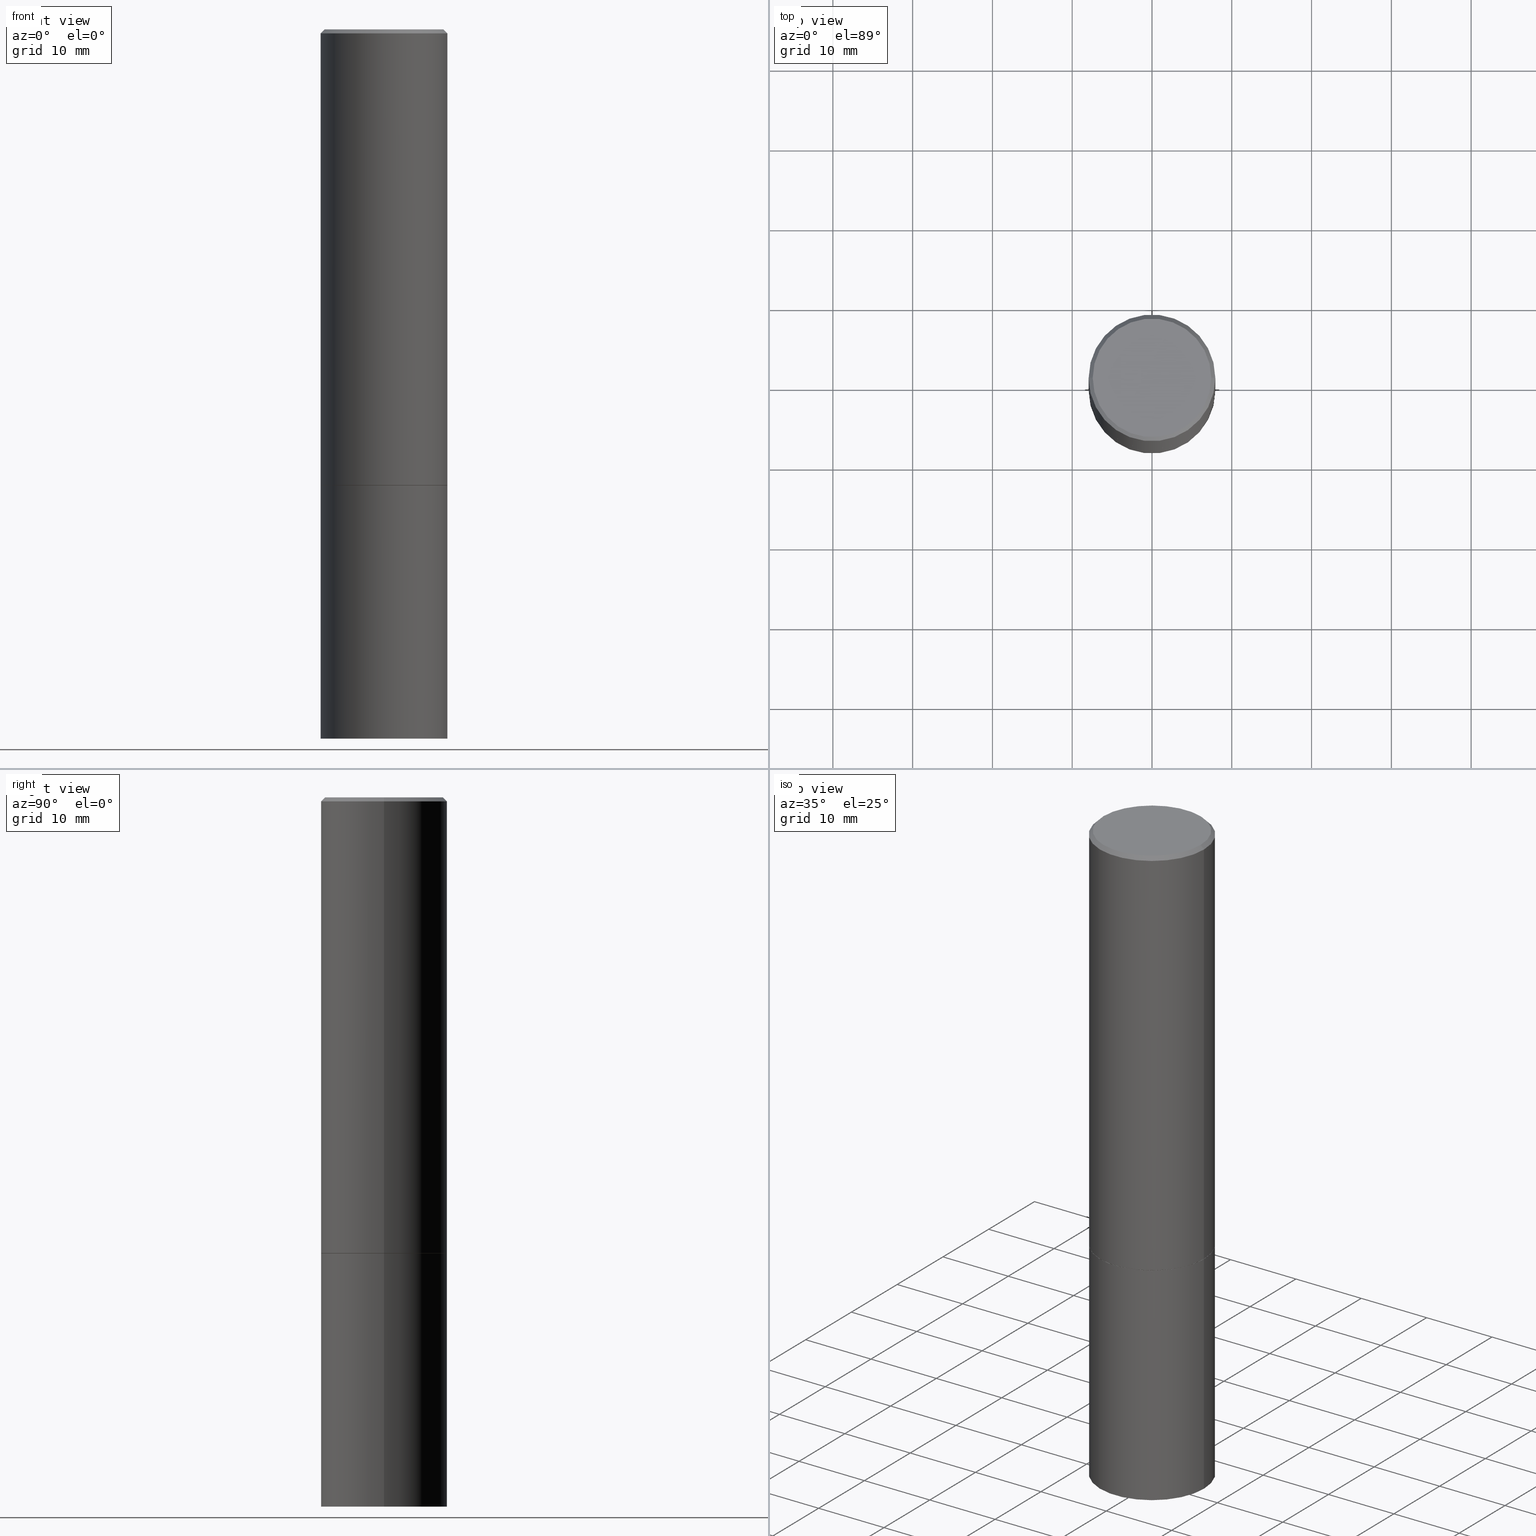
[diagram: canonical four-view strip — front | top / right | iso, engineering-drawing reading convention]
A machine part, canonical four-view strip (front | top / right | iso — engineering-drawing reading convention). The complete STEP part file that produces these views, byte-faithful:
ISO-10303-21;
HEADER;
FILE_DESCRIPTION (( 'STEP AP203' ),
    '1' );
FILE_NAME ('30181.STEP',
    '2023-03-21T20:24:53',
    ( '' ),
    ( '' ),
    'SwSTEP 2.0',
    'SolidWorks 2022',
    '' );
FILE_SCHEMA (( 'CONFIG_CONTROL_DESIGN' ));
ENDSEC;

DATA;
#1 = CONICAL_SURFACE ( 'NONE', #257, 751.2258538476739886, 1.518436449235074148 ) ;
#2 = CARTESIAN_POINT ( 'NONE',  ( 5.502304813916556222E-29, -7.855833012397075293E-15, -2.249999999999999556 ) ) ;
#3 = APPROVAL_ROLE ( '' ) ;
#4 = LINE ( 'NONE', #166, #90 ) ;
#5 = LINE ( 'NONE', #144, #272 ) ;
#6 = PERSON_AND_ORGANIZATION ( #386, #380 ) ;
#7 = EDGE_LOOP ( 'NONE', ( #354, #199 ) ) ;
#8 = DIRECTION ( 'NONE',  ( -1.000000000000000000, 6.982962677686266711E-15, 0.000000000000000000 ) ) ;
#9 = EDGE_CURVE ( 'NONE', #65, #268, #13, .T. ) ;
#10 = APPROVAL ( #226, 'UNSPECIFIED' ) ;
#11 = FACE_OUTER_BOUND ( 'NONE', #193, .T. ) ;
#12 = DIRECTION ( 'NONE',  ( 1.000000000000000000, -6.982962677686265133E-15, 0.000000000000000000 ) ) ;
#13 = CIRCLE ( 'NONE', #103, 0.2924999999999997602 ) ;
#14 = CARTESIAN_POINT ( 'NONE',  ( 5.499859345110370619E-29, -7.852341531058232286E-15, -2.248999999999999222 ) ) ;
#15 = DIRECTION ( 'NONE',  ( -2.445468806185136597E-29, 3.491481338843145583E-15, 1.000000000000000000 ) ) ;
#16 = LINE ( 'NONE', #81, #245 ) ;
#17 = CARTESIAN_POINT ( 'NONE',  ( -1.043851414335219820E-46, 1.490343170380447200E-32, 4.268512490100411279E-18 ) ) ;
#18 = APPROVAL_DATE_TIME ( #375, #136 ) ;
#19 = ORIENTED_EDGE ( 'NONE', *, *, #89, .T. ) ;
#20 = DIRECTION ( 'NONE',  ( 1.000000000000000000, -6.982962677686265133E-15, 0.000000000000000000 ) ) ;
#21 = CALENDAR_DATE ( 2023, 21, 3 ) ;
#22 = CIRCLE ( 'NONE', #328, 0.3125000000000000000 ) ;
#23 = DIRECTION ( 'NONE',  ( -2.445468806185136877E-29, 3.491481338843145188E-15, 1.000000000000000000 ) ) ;
#24 = DIRECTION ( 'NONE',  ( -2.445468806185136597E-29, 3.491481338843145583E-15, 1.000000000000000000 ) ) ;
#25 = VERTEX_POINT ( 'NONE', #389 ) ;
#26 = EDGE_LOOP ( 'NONE', ( #118, #239, #83, #180 ) ) ;
#27 = EDGE_CURVE ( 'NONE', #261, #233, #256, .T. ) ;
#28 =( CONVERSION_BASED_UNIT ( 'INCH', #123 ) LENGTH_UNIT ( ) NAMED_UNIT ( #277 ) );
#29 = FACE_OUTER_BOUND ( 'NONE', #168, .T. ) ;
#30 = COORDINATED_UNIVERSAL_TIME_OFFSET ( 5, 0, .BEHIND. ) ;
#31 = DIRECTION ( 'NONE',  ( -2.438088387897960049E-29, 3.491481338843145188E-15, 1.000000000000000000 ) ) ;
#32 = EDGE_CURVE ( 'NONE', #298, #288, #183, .T. ) ;
#33 = CYLINDRICAL_SURFACE ( 'NONE', #289, 0.3125000000000000000 ) ;
#34 = ORIENTED_EDGE ( 'NONE', *, *, #37, .F. ) ;
#35 = CARTESIAN_POINT ( 'NONE',  ( -0.3125000000000000000, -7.817562799923728448E-15, -2.249999999999999556 ) ) ;
#36 = DATE_AND_TIME ( #61, #96 ) ;
#37 = EDGE_CURVE ( 'NONE', #209, #114, #5, .T. ) ;
#38 = AXIS2_PLACEMENT_3D ( 'NONE', #346, #347, #106 ) ;
#39 = PERSON_AND_ORGANIZATION_ROLE ( 'classification_officer' ) ;
#40 = AXIS2_PLACEMENT_3D ( 'NONE', #246, #353, #85 ) ;
#41 = DIRECTION ( 'NONE',  ( 1.000000000000000000, -6.982962677686265133E-15, 0.000000000000000000 ) ) ;
#42 = AXIS2_PLACEMENT_3D ( 'NONE', #62, #217, #258 ) ;
#43 = CYLINDRICAL_SURFACE ( 'NONE', #145, 0.3124999999999998890 ) ;
#44 = DIRECTION ( 'NONE',  ( -1.000000000000000000, 6.982962677686265922E-15, -4.876176775795935793E-29 ) ) ;
#45 = EDGE_CURVE ( 'NONE', #261, #319, #367, .T. ) ;
#46 = APPLICATION_PROTOCOL_DEFINITION ( 'international standard', 'config_control_design', 1994, #294 ) ;
#47 = EDGE_LOOP ( 'NONE', ( #307, #281, #382 ) ) ;
#48 = ADVANCED_FACE ( 'NONE', ( #341 ), #1, .F. ) ;
#49 = PRODUCT_RELATED_PRODUCT_CATEGORY ( 'detail', '', ( #76 ) ) ;
#50 = CIRCLE ( 'NONE', #208, 0.3125000000000000000 ) ;
#51 = DESIGN_CONTEXT ( 'detailed design', #232, 'design' ) ;
#52 = APPROVAL_PERSON_ORGANIZATION ( #165, #203, #339 ) ;
#53 =( NAMED_UNIT ( * ) PLANE_ANGLE_UNIT ( ) SI_UNIT ( $, .RADIAN. ) );
#54 = APPROVAL_DATE_TIME ( #36, #10 ) ;
#55 = LINE ( 'NONE', #219, #384 ) ;
#56 = ADVANCED_FACE ( 'NONE', ( #68 ), #371, .F. ) ;
#57 = DIRECTION ( 'NONE',  ( 1.000000000000000000, -6.982962677686269077E-15, 0.000000000000000000 ) ) ;
#58 = CIRCLE ( 'NONE', #67, 0.3125000000000000000 ) ;
#59 = ORIENTED_EDGE ( 'NONE', *, *, #9, .T. ) ;
#60 = DATE_AND_TIME ( #130, #113 ) ;
#61 = CALENDAR_DATE ( 2023, 21, 3 ) ;
#62 = CARTESIAN_POINT ( 'NONE',  ( 4.890937612370289799E-31, -6.982962677686315028E-17, -0.02000000000000006981 ) ) ;
#63 = ORIENTED_EDGE ( 'NONE', *, *, #27, .T. ) ;
#64 = APPROVAL_DATE_TIME ( #60, #203 ) ;
#65 = VERTEX_POINT ( 'NONE', #176 ) ;
#66 = CIRCLE ( 'NONE', #38, 0.3125000000000000000 ) ;
#67 = AXIS2_PLACEMENT_3D ( 'NONE', #100, #102, #314 ) ;
#68 = FACE_OUTER_BOUND ( 'NONE', #271, .T. ) ;
#69 = CARTESIAN_POINT ( 'NONE',  ( 5.502304813916556222E-29, -7.855833012397075293E-15, -2.249999999999999556 ) ) ;
#70 = ORIENTED_EDGE ( 'NONE', *, *, #383, .F. ) ;
#71 = DIRECTION ( 'NONE',  ( -1.000000000000000000, 6.982962677686266711E-15, 0.000000000000000000 ) ) ;
#72 = CONICAL_SURFACE ( 'NONE', #178, 0.3114999999999999991, 0.7853981633974141952 ) ;
#73 = APPROVAL_ROLE ( '' ) ;
#74 = PRODUCT_DEFINITION_FORMATION_WITH_SPECIFIED_SOURCE ( 'ANY', '', #76, .NOT_KNOWN. ) ;
#75 = DIRECTION ( 'NONE',  ( -2.445468806185136877E-29, 3.491481338843145188E-15, 1.000000000000000000 ) ) ;
#76 = PRODUCT ( '30181', '30181', '', ( #98 ) ) ;
#77 = CARTESIAN_POINT ( 'NONE',  ( 0.3124999999999998890, -2.182175836776957558E-15, 1.523805242436229235E-29 ) ) ;
#78 = ADVANCED_FACE ( 'NONE', ( #115 ), #202, .T. ) ;
#79 = VERTEX_POINT ( 'NONE', #211 ) ;
#80 = PRODUCT_DEFINITION ( 'UNKNOWN', '', #74, #51 ) ;
#81 = CARTESIAN_POINT ( 'NONE',  ( 0.3125000000000000000, -2.182175836776958347E-15, 1.523805242436230075E-29 ) ) ;
#82 = DIRECTION ( 'NONE',  ( 0.7071067811865466846, -7.319954787623252890E-15, -0.7071067811865483499 ) ) ;
#83 = ORIENTED_EDGE ( 'NONE', *, *, #302, .T. ) ;
#84 = VECTOR ( 'NONE', #135, 39.37007874015748143 ) ;
#85 = DIRECTION ( 'NONE',  ( 1.000000000000000000, 0.000000000000000000, 0.000000000000000000 ) ) ;
#86 = ADVANCED_FACE ( 'NONE', ( #318 ), #299, .F. ) ;
#87 = CARTESIAN_POINT ( 'NONE',  ( -0.3124999999999997224, -1.003800884917405415E-14, -3.500000000000000000 ) ) ;
#88 = ORIENTED_EDGE ( 'NONE', *, *, #37, .T. ) ;
#89 = EDGE_CURVE ( 'NONE', #209, #319, #50, .T. ) ;
#90 = VECTOR ( 'NONE', #131, 39.37007874015748143 ) ;
#91 = ORIENTED_EDGE ( 'NONE', *, *, #128, .F. ) ;
#92 = DATE_AND_TIME ( #312, #313 ) ;
#93 = PERSON_AND_ORGANIZATION_ROLE ( 'design_owner' ) ;
#94 = CARTESIAN_POINT ( 'NONE',  ( 5.502304813916556222E-29, -7.855833012397075293E-15, -2.249999999999999556 ) ) ;
#95 = DIRECTION ( 'NONE',  ( -2.445468806185136597E-29, 3.491481338843145583E-15, 1.000000000000000000 ) ) ;
#96 = LOCAL_TIME ( 16, 24, 53.00000000000000000, #30 ) ;
#97 = CYLINDRICAL_SURFACE ( 'NONE', #250, 0.3124999999999998890 ) ;
#98 = MECHANICAL_CONTEXT ( 'NONE', #294, 'mechanical' ) ;
#99 = CC_DESIGN_PERSON_AND_ORGANIZATION_ASSIGNMENT ( #198, #127, ( #74 ) ) ;
#100 = CARTESIAN_POINT ( 'NONE',  ( 5.499859345110370619E-29, -7.852341531058232286E-15, -2.248999999999999222 ) ) ;
#101 = FACE_OUTER_BOUND ( 'NONE', #26, .T. ) ;
#102 = DIRECTION ( 'NONE',  ( -2.445468806185136597E-29, 3.491481338843145583E-15, 1.000000000000000000 ) ) ;
#103 = AXIS2_PLACEMENT_3D ( 'NONE', #133, #204, #254 ) ;
#104 = ORIENTED_EDGE ( 'NONE', *, *, #132, .F. ) ;
#105 = ADVANCED_FACE ( 'NONE', ( #273 ), #43, .T. ) ;
#106 = DIRECTION ( 'NONE',  ( 1.000000000000000000, -6.982962677686269077E-15, 0.000000000000000000 ) ) ;
#107 = DIRECTION ( 'NONE',  ( 2.445468806185136597E-29, -3.491481338843145583E-15, -1.000000000000000000 ) ) ;
#108 = CARTESIAN_POINT ( 'NONE',  ( 5.502304813916556222E-29, -7.855833012397075293E-15, -2.249999999999999556 ) ) ;
#109 = ORIENTED_EDGE ( 'NONE', *, *, #45, .T. ) ;
#110 = DIRECTION ( 'NONE',  ( -2.445468806185136597E-29, 3.491481338843145583E-15, 1.000000000000000000 ) ) ;
#111 = EDGE_CURVE ( 'NONE', #79, #288, #16, .T. ) ;
#112 = VECTOR ( 'NONE', #374, 39.37007874015748143 ) ;
#113 = LOCAL_TIME ( 16, 24, 53.00000000000000000, #171 ) ;
#114 = VERTEX_POINT ( 'NONE', #267 ) ;
#115 = FACE_OUTER_BOUND ( 'NONE', #381, .T. ) ;
#116 = CC_DESIGN_PERSON_AND_ORGANIZATION_ASSIGNMENT ( #360, #279, ( #80 ) ) ;
#117 = EDGE_CURVE ( 'NONE', #114, #378, #285, .T. ) ;
#118 = ORIENTED_EDGE ( 'NONE', *, *, #385, .F. ) ;
#119 = CYLINDRICAL_SURFACE ( 'NONE', #187, 0.3125000000000000000 ) ;
#120 = LINE ( 'NONE', #182, #122 ) ;
#121 = AXIS2_PLACEMENT_3D ( 'NONE', #293, #107, #343 ) ;
#122 = VECTOR ( 'NONE', #82, 39.37007874015748143 ) ;
#123 = LENGTH_MEASURE_WITH_UNIT ( LENGTH_MEASURE( 0.02539999999999999897 ), #301 );
#124 = ORIENTED_EDGE ( 'NONE', *, *, #331, .F. ) ;
#125 = ORIENTED_EDGE ( 'NONE', *, *, #163, .T. ) ;
#126 = AXIS2_PLACEMENT_3D ( 'NONE', #243, #240, #154 ) ;
#127 = PERSON_AND_ORGANIZATION_ROLE ( 'design_supplier' ) ;
#128 = EDGE_CURVE ( 'NONE', #25, #79, #149, .T. ) ;
#129 = PLANE ( 'NONE',  #213 ) ;
#130 = CALENDAR_DATE ( 2023, 21, 3 ) ;
#131 = DIRECTION ( 'NONE',  ( -2.445468806185136877E-29, 3.491481338843145188E-15, 1.000000000000000000 ) ) ;
#132 = EDGE_CURVE ( 'NONE', #378, #114, #325, .T. ) ;
#133 = CARTESIAN_POINT ( 'NONE',  ( -1.043851414335219820E-46, 1.490343170380447200E-32, 4.268512490100411279E-18 ) ) ;
#134 = DIRECTION ( 'NONE',  ( -2.445468806185136597E-29, 3.491481338843145583E-15, 1.000000000000000000 ) ) ;
#135 = DIRECTION ( 'NONE',  ( -0.7071067811865466846, 2.468850131082247989E-15, -0.7071067811865483499 ) ) ;
#136 = APPROVAL ( #292, 'UNSPECIFIED' ) ;
#137 = ORIENTED_EDGE ( 'NONE', *, *, #247, .T. ) ;
#138 = ORIENTED_EDGE ( 'NONE', *, *, #9, .F. ) ;
#139 = FACE_OUTER_BOUND ( 'NONE', #387, .T. ) ;
#140 = SECURITY_CLASSIFICATION_LEVEL ( 'unclassified' ) ;
#141 = PLANE ( 'NONE',  #369 ) ;
#142 = DIRECTION ( 'NONE',  ( -2.445468806185136877E-29, 3.491481338843145188E-15, 1.000000000000000000 ) ) ;
#143 = ORIENTED_EDGE ( 'NONE', *, *, #212, .T. ) ;
#144 = CARTESIAN_POINT ( 'NONE',  ( -0.3124999999999998890, 2.220446049250312292E-15, -1.537167215704657391E-29 ) ) ;
#145 = AXIS2_PLACEMENT_3D ( 'NONE', #175, #24, #291 ) ;
#146 = SHAPE_DEFINITION_REPRESENTATION ( #326, #196 ) ;
#147 = ORIENTED_EDGE ( 'NONE', *, *, #385, .T. ) ;
#148 = ORIENTED_EDGE ( 'NONE', *, *, #308, .T. ) ;
#149 = LINE ( 'NONE', #264, #112 ) ;
#150 = CONICAL_SURFACE ( 'NONE', #249, 0.3114999999999999991, 0.7853981633974141952 ) ;
#151 = LOCAL_TIME ( 16, 24, 53.00000000000000000, #174 ) ;
#152 = DIRECTION ( 'NONE',  ( -0.7071067811865232589, 7.493145998870265808E-15, 0.7071067811865715536 ) ) ;
#153 = CARTESIAN_POINT ( 'NONE',  ( 4.890937612370289799E-31, -6.982962677686315028E-17, -0.02000000000000006981 ) ) ;
#154 = DIRECTION ( 'NONE',  ( 1.000000000000000000, -6.982962677686265133E-15, 0.000000000000000000 ) ) ;
#155 = CC_DESIGN_APPROVAL ( #10, ( #80 ) ) ;
#156 = ORIENTED_EDGE ( 'NONE', *, *, #117, .F. ) ;
#157 = EDGE_CURVE ( 'NONE', #79, #320, #22, .T. ) ;
#158 = CC_DESIGN_DATE_AND_TIME_ASSIGNMENT ( #255, #335, ( #80 ) ) ;
#159 = VECTOR ( 'NONE', #75, 39.37007874015748143 ) ;
#160 = FACE_OUTER_BOUND ( 'NONE', #242, .T. ) ;
#161 = CARTESIAN_POINT ( 'NONE',  ( 0.000000000000000000, 0.000000000000000000, 0.000000000000000000 ) ) ;
#162 = ORIENTED_EDGE ( 'NONE', *, *, #308, .F. ) ;
#163 = EDGE_CURVE ( 'NONE', #320, #79, #66, .T. ) ;
#164 = LINE ( 'NONE', #284, #84 ) ;
#165 = PERSON_AND_ORGANIZATION ( #386, #380 ) ;
#166 = CARTESIAN_POINT ( 'NONE',  ( -0.3125000000000000000, 2.220446049250313081E-15, -1.537167215704658232E-29 ) ) ;
#167 = AXIS2_PLACEMENT_3D ( 'NONE', #337, #195, #44 ) ;
#168 = EDGE_LOOP ( 'NONE', ( #370, #125, #235, #304 ) ) ;
#169 = SECURITY_CLASSIFICATION ( '', '', #140 ) ;
#170 = DIRECTION ( 'NONE',  ( -2.445468806185136597E-29, 3.491481338843145583E-15, 1.000000000000000000 ) ) ;
#171 = COORDINATED_UNIVERSAL_TIME_OFFSET ( 5, 0, .BEHIND. ) ;
#172 = DIRECTION ( 'NONE',  ( -0.9986295347545742773, 6.790662755453668466E-15, -0.05233595624293643084 ) ) ;
#173 = CARTESIAN_POINT ( 'NONE',  ( 5.502304813916556222E-29, -7.855833012397075293E-15, -2.249999999999999556 ) ) ;
#174 = COORDINATED_UNIVERSAL_TIME_OFFSET ( 5, 0, .BEHIND. ) ;
#175 = CARTESIAN_POINT ( 'NONE',  ( 0.000000000000000000, 0.000000000000000000, 0.000000000000000000 ) ) ;
#176 = CARTESIAN_POINT ( 'NONE',  ( 0.2924999999999997602, -2.110215457714318353E-15, 4.268512490114932791E-18 ) ) ;
#177 = CARTESIAN_POINT ( 'NONE',  ( 1.047973897810563057E-27, -1.496228984211908293E-13, -42.85370130913153019 ) ) ;
#178 = AXIS2_PLACEMENT_3D ( 'NONE', #2, #170, #338 ) ;
#179 = ORIENTED_EDGE ( 'NONE', *, *, #27, .F. ) ;
#180 = ORIENTED_EDGE ( 'NONE', *, *, #117, .T. ) ;
#181 = DIRECTION ( 'NONE',  ( -2.445468806185136597E-29, 3.491481338843145583E-15, 1.000000000000000000 ) ) ;
#182 = CARTESIAN_POINT ( 'NONE',  ( 0.3124999999999998335, -2.213735251080465334E-15, -0.02000000000000006981 ) ) ;
#183 = CIRCLE ( 'NONE', #344, 0.3125000000000000000 ) ;
#184 = CC_DESIGN_SECURITY_CLASSIFICATION ( #169, ( #74 ) ) ;
#185 = CIRCLE ( 'NONE', #290, 0.3114999999999999991 ) ;
#186 = ORIENTED_EDGE ( 'NONE', *, *, #372, .F. ) ;
#187 = AXIS2_PLACEMENT_3D ( 'NONE', #244, #181, #352 ) ;
#188 = FACE_OUTER_BOUND ( 'NONE', #215, .T. ) ;
#189 = AXIS2_PLACEMENT_3D ( 'NONE', #259, #363, #366 ) ;
#190 = CARTESIAN_POINT ( 'NONE',  ( -0.3114999999999999991, -5.637193936156140818E-15, -2.249999999999999556 ) ) ;
#191 = ORIENTED_EDGE ( 'NONE', *, *, #89, .F. ) ;
#192 = PERSON_AND_ORGANIZATION_ROLE ( 'creator' ) ;
#193 = EDGE_LOOP ( 'NONE', ( #63, #148, #186, #373 ) ) ;
#194 = DIRECTION ( 'NONE',  ( 1.000000000000000000, -6.982962677686266711E-15, 4.876176775795936353E-29 ) ) ;
#195 = DIRECTION ( 'NONE',  ( 2.438088387897960049E-29, -3.491481338843145188E-15, -1.000000000000000000 ) ) ;
#196 = ADVANCED_BREP_SHAPE_REPRESENTATION ( '30181', ( #266, #379, #40 ), #300 ) ;
#197 = CARTESIAN_POINT ( 'NONE',  ( 0.000000000000000000, 0.000000000000000000, 0.000000000000000000 ) ) ;
#198 = PERSON_AND_ORGANIZATION ( #386, #380 ) ;
#199 = ORIENTED_EDGE ( 'NONE', *, *, #32, .T. ) ;
#200 = ORIENTED_EDGE ( 'NONE', *, *, #157, .F. ) ;
#201 = COORDINATED_UNIVERSAL_TIME_OFFSET ( 5, 0, .BEHIND. ) ;
#202 = CONICAL_SURFACE ( 'NONE', #121, 0.3124999999999998335, 0.7853981633974471688 ) ;
#203 = APPROVAL ( #388, 'UNSPECIFIED' ) ;
#204 = DIRECTION ( 'NONE',  ( -2.445468806185136597E-29, 3.491481338843145583E-15, 1.000000000000000000 ) ) ;
#205 = EDGE_CURVE ( 'NONE', #319, #378, #234, .T. ) ;
#206 = EDGE_LOOP ( 'NONE', ( #91, #137, #200 ) ) ;
#207 = DIRECTION ( 'NONE',  ( -2.445468806185136597E-29, 3.491481338843145583E-15, 1.000000000000000000 ) ) ;
#208 = AXIS2_PLACEMENT_3D ( 'NONE', #14, #207, #349 ) ;
#209 = VERTEX_POINT ( 'NONE', #210 ) ;
#210 = CARTESIAN_POINT ( 'NONE',  ( -0.3125000000000000000, -1.740639529667232739E-15, -2.248999999999999222 ) ) ;
#211 = CARTESIAN_POINT ( 'NONE',  ( 0.3124999999999997224, -1.436409031025461138E-14, -3.500000000000000000 ) ) ;
#212 = EDGE_CURVE ( 'NONE', #320, #298, #4, .T. ) ;
#213 = AXIS2_PLACEMENT_3D ( 'NONE', #253, #361, #283 ) ;
#214 = ORIENTED_EDGE ( 'NONE', *, *, #132, .T. ) ;
#215 = EDGE_LOOP ( 'NONE', ( #179, #70 ) ) ;
#216 = CARTESIAN_POINT ( 'NONE',  ( -0.3114999999999999991, -5.642492390504363220E-15, -2.249999999999999556 ) ) ;
#217 = DIRECTION ( 'NONE',  ( 2.445468806185136597E-29, -3.491481338843145583E-15, -1.000000000000000000 ) ) ;
#218 = DATE_TIME_ROLE ( 'classification_date' ) ;
#219 = CARTESIAN_POINT ( 'NONE',  ( -7.387612300004094033E-19, -1.216300319114572191E-14, -3.483622568974051870 ) ) ;
#220 = DIRECTION ( 'NONE',  ( -2.445468806185136597E-29, 3.491481338843145583E-15, 1.000000000000000000 ) ) ;
#221 = COORDINATED_UNIVERSAL_TIME_OFFSET ( 5, 0, .BEHIND. ) ;
#222 = VECTOR ( 'NONE', #152, 39.37007874015748854 ) ;
#223 = DIRECTION ( 'NONE',  ( -2.445468806185136597E-29, 3.491481338843145583E-15, 1.000000000000000000 ) ) ;
#224 = DIRECTION ( 'NONE',  ( 2.445468806185136597E-29, -3.491481338843145583E-15, -1.000000000000000000 ) ) ;
#225 = CALENDAR_DATE ( 2023, 21, 3 ) ;
#226 = APPROVAL_STATUS ( 'not_yet_approved' ) ;
#227 = ADVANCED_FACE ( 'NONE', ( #160 ), #150, .T. ) ;
#228 = CARTESIAN_POINT ( 'NONE',  ( 0.3114999999999999991, -1.003102588649634920E-14, -2.249999999999999556 ) ) ;
#229 = CARTESIAN_POINT ( 'NONE',  ( 1.047973897810563057E-27, -1.496228984211908293E-13, -42.85370130913153019 ) ) ;
#230 = DIRECTION ( 'NONE',  ( -2.445468806185136597E-29, 3.491481338843145583E-15, 1.000000000000000000 ) ) ;
#231 = ADVANCED_FACE ( 'NONE', ( #101 ), #336, .T. ) ;
#232 = APPLICATION_CONTEXT ( 'configuration controlled 3d designs of mechanical parts and assemblies' ) ;
#233 = VERTEX_POINT ( 'NONE', #190 ) ;
#234 = LINE ( 'NONE', #77, #159 ) ;
#235 = ORIENTED_EDGE ( 'NONE', *, *, #111, .T. ) ;
#236 = DIRECTION ( 'NONE',  ( 1.000000000000000000, -6.982962677686269077E-15, 0.000000000000000000 ) ) ;
#237 = AXIS2_PLACEMENT_3D ( 'NONE', #177, #296, #71 ) ;
#238 = APPROVAL_PERSON_ORGANIZATION ( #311, #10, #3 ) ;
#239 = ORIENTED_EDGE ( 'NONE', *, *, #377, .F. ) ;
#240 = DIRECTION ( 'NONE',  ( -2.445468806185136597E-29, 3.491481338843145583E-15, 1.000000000000000000 ) ) ;
#241 = ORIENTED_EDGE ( 'NONE', *, *, #205, .F. ) ;
#242 = EDGE_LOOP ( 'NONE', ( #162, #390, #109, #191 ) ) ;
#243 = CARTESIAN_POINT ( 'NONE',  ( 4.890937612370289799E-31, -6.982962677686315028E-17, -0.02000000000000006981 ) ) ;
#244 = CARTESIAN_POINT ( 'NONE',  ( 0.000000000000000000, 0.000000000000000000, 0.000000000000000000 ) ) ;
#245 = VECTOR ( 'NONE', #23, 39.37007874015748143 ) ;
#246 = CARTESIAN_POINT ( 'NONE',  ( 0.000000000000000000, 0.000000000000000000, 0.000000000000000000 ) ) ;
#247 = EDGE_CURVE ( 'NONE', #25, #320, #55, .T. ) ;
#248 = CARTESIAN_POINT ( 'NONE',  ( 0.3125000000000000000, -1.003451736783519063E-14, -2.248999999999999222 ) ) ;
#249 = AXIS2_PLACEMENT_3D ( 'NONE', #94, #362, #334 ) ;
#250 = AXIS2_PLACEMENT_3D ( 'NONE', #197, #230, #310 ) ;
#251 = PERSON_AND_ORGANIZATION ( #386, #380 ) ;
#252 = CARTESIAN_POINT ( 'NONE',  ( -0.2924999999999997602, 2.077431396611662611E-15, 4.268512490086005323E-18 ) ) ;
#253 = CARTESIAN_POINT ( 'NONE',  ( 2.182175836777013173E-15, 0.3124999999999921729, -2.250000000000000444 ) ) ;
#254 = DIRECTION ( 'NONE',  ( 1.000000000000000000, -6.982962677686266711E-15, 4.876067333457693400E-29 ) ) ;
#255 = DATE_AND_TIME ( #225, #364 ) ;
#256 = CIRCLE ( 'NONE', #189, 0.3114999999999999991 ) ;
#257 = AXIS2_PLACEMENT_3D ( 'NONE', #229, #224, #8 ) ;
#258 = DIRECTION ( 'NONE',  ( -1.000000000000000000, 6.982962677686265133E-15, 0.000000000000000000 ) ) ;
#259 = CARTESIAN_POINT ( 'NONE',  ( 5.502304813916556222E-29, -7.855833012397075293E-15, -2.249999999999999556 ) ) ;
#260 = ADVANCED_FACE ( 'NONE', ( #188 ), #141, .F. ) ;
#261 = VERTEX_POINT ( 'NONE', #228 ) ;
#262 = CIRCLE ( 'NONE', #357, 0.3125000000000000000 ) ;
#263 = DIRECTION ( 'NONE',  ( 0.7071067811865232589, -2.468850131082003836E-15, 0.7071067811865715536 ) ) ;
#264 = CARTESIAN_POINT ( 'NONE',  ( 7.387612301707912254E-19, -1.216300319114572191E-14, -3.483622568974051870 ) ) ;
#265 = DIRECTION ( 'NONE',  ( 1.000000000000000000, -6.982962677686266711E-15, 4.876067333457693400E-29 ) ) ;
#266 = MANIFOLD_SOLID_BREP ( 'Body-Move/Copy2[1]', #323 ) ;
#267 = CARTESIAN_POINT ( 'NONE',  ( -0.3124999999999998335, 2.112346210000093866E-15, -0.02000000000000006981 ) ) ;
#268 = VERTEX_POINT ( 'NONE', #252 ) ;
#269 = CARTESIAN_POINT ( 'NONE',  ( 0.3124999999999998335, -2.213735251080465334E-15, -0.02000000000000006981 ) ) ;
#270 = CLOSED_SHELL ( 'NONE', ( #321, #105, #78, #231, #355, #227, #260, #56 ) ) ;
#271 = EDGE_LOOP ( 'NONE', ( #278, #59 ) ) ;
#272 = VECTOR ( 'NONE', #142, 39.37007874015748143 ) ;
#273 = FACE_OUTER_BOUND ( 'NONE', #342, .T. ) ;
#274 = CC_DESIGN_PERSON_AND_ORGANIZATION_ASSIGNMENT ( #6, #192, ( #74 ) ) ;
#275 = CARTESIAN_POINT ( 'NONE',  ( 8.559140821647976968E-29, -1.222018468595100934E-14, -3.500000000000000000 ) ) ;
#276 = ADVANCED_FACE ( 'NONE', ( #340 ), #129, .F. ) ;
#277 = DIMENSIONAL_EXPONENTS ( 1.000000000000000000, 0.000000000000000000, 0.000000000000000000, 0.000000000000000000, 0.000000000000000000, 0.000000000000000000, 0.000000000000000000 ) ;
#278 = ORIENTED_EDGE ( 'NONE', *, *, #377, .T. ) ;
#279 = PERSON_AND_ORGANIZATION_ROLE ( 'creator' ) ;
#280 = DIRECTION ( 'NONE',  ( 1.000000000000000000, -6.982962677686265922E-15, 4.876176775795935793E-29 ) ) ;
#281 = ORIENTED_EDGE ( 'NONE', *, *, #128, .T. ) ;
#282 = APPLICATION_PROTOCOL_DEFINITION ( 'international standard', 'config_control_design', 1994, #232 ) ;
#283 = DIRECTION ( 'NONE',  ( -1.000000000000000000, 6.982962677686265922E-15, -4.876176775795935793E-29 ) ) ;
#284 = CARTESIAN_POINT ( 'NONE',  ( -0.3124999999999998335, 2.112346210000093866E-15, -0.02000000000000006981 ) ) ;
#285 = CIRCLE ( 'NONE', #376, 0.3124999999999998335 ) ;
#286 = ADVANCED_FACE ( 'NONE', ( #306 ), #33, .T. ) ;
#287 = ORIENTED_EDGE ( 'NONE', *, *, #157, .T. ) ;
#288 = VERTEX_POINT ( 'NONE', #309 ) ;
#289 = AXIS2_PLACEMENT_3D ( 'NONE', #161, #223, #194 ) ;
#290 = AXIS2_PLACEMENT_3D ( 'NONE', #108, #220, #57 ) ;
#291 = DIRECTION ( 'NONE',  ( 1.000000000000000000, -6.982962677686266711E-15, 4.876176775795935232E-29 ) ) ;
#292 = APPROVAL_STATUS ( 'not_yet_approved' ) ;
#293 = CARTESIAN_POINT ( 'NONE',  ( 4.890937612370289799E-31, -6.982962677686315028E-17, -0.02000000000000006981 ) ) ;
#294 = APPLICATION_CONTEXT ( 'configuration controlled 3d designs of mechanical parts and assemblies' ) ;
#295 = PERSON_AND_ORGANIZATION ( #386, #380 ) ;
#296 = DIRECTION ( 'NONE',  ( 2.445468806185136597E-29, -3.491481338843145583E-15, -1.000000000000000000 ) ) ;
#297 = ORIENTED_EDGE ( 'NONE', *, *, #372, .T. ) ;
#298 = VERTEX_POINT ( 'NONE', #35 ) ;
#299 = CONICAL_SURFACE ( 'NONE', #237, 751.2258538476739886, 1.518436449235074148 ) ;
#300 =( GEOMETRIC_REPRESENTATION_CONTEXT ( 3 ) GLOBAL_UNCERTAINTY_ASSIGNED_CONTEXT ( ( #359 ) ) GLOBAL_UNIT_ASSIGNED_CONTEXT ( ( #28, #53, #356 ) ) REPRESENTATION_CONTEXT ( 'NONE', 'WORKASPACE' ) );
#301 =( LENGTH_UNIT ( ) NAMED_UNIT ( * ) SI_UNIT ( $, .METRE. ) );
#302 = EDGE_CURVE ( 'NONE', #268, #114, #164, .T. ) ;
#303 = CARTESIAN_POINT ( 'NONE',  ( 5.502304813916556222E-29, -7.855833012397075293E-15, -2.249999999999999556 ) ) ;
#304 = ORIENTED_EDGE ( 'NONE', *, *, #32, .F. ) ;
#305 = CC_DESIGN_APPROVAL ( #136, ( #169 ) ) ;
#306 = FACE_OUTER_BOUND ( 'NONE', #348, .T. ) ;
#307 = ORIENTED_EDGE ( 'NONE', *, *, #247, .F. ) ;
#308 = EDGE_CURVE ( 'NONE', #233, #209, #365, .T. ) ;
#309 = CARTESIAN_POINT ( 'NONE',  ( 0.3125000000000000000, -1.003800884917403364E-14, -2.249999999999999556 ) ) ;
#310 = DIRECTION ( 'NONE',  ( 1.000000000000000000, -6.982962677686266711E-15, 4.876176775795935232E-29 ) ) ;
#311 = PERSON_AND_ORGANIZATION ( #386, #380 ) ;
#312 = CALENDAR_DATE ( 2023, 21, 3 ) ;
#313 = LOCAL_TIME ( 16, 24, 53.00000000000000000, #201 ) ;
#314 = DIRECTION ( 'NONE',  ( 1.000000000000000000, -6.982962677686269077E-15, 0.000000000000000000 ) ) ;
#315 = ADVANCED_FACE ( 'NONE', ( #29 ), #119, .T. ) ;
#316 = DIRECTION ( 'NONE',  ( -2.445468806185136597E-29, 3.491481338843145583E-15, 1.000000000000000000 ) ) ;
#317 = CIRCLE ( 'NONE', #351, 0.2924999999999997602 ) ;
#318 = FACE_OUTER_BOUND ( 'NONE', #47, .T. ) ;
#319 = VERTEX_POINT ( 'NONE', #248 ) ;
#320 = VERTEX_POINT ( 'NONE', #87 ) ;
#321 = ADVANCED_FACE ( 'NONE', ( #11 ), #72, .T. ) ;
#322 = CC_DESIGN_PERSON_AND_ORGANIZATION_ASSIGNMENT ( #251, #39, ( #169 ) ) ;
#323 = CLOSED_SHELL ( 'NONE', ( #286, #86, #48, #315, #276 ) ) ;
#324 = ORIENTED_EDGE ( 'NONE', *, *, #205, .T. ) ;
#325 = CIRCLE ( 'NONE', #126, 0.3124999999999998335 ) ;
#326 = PRODUCT_DEFINITION_SHAPE ( 'NONE', 'NONE',  #80 ) ;
#327 = ORIENTED_EDGE ( 'NONE', *, *, #111, .F. ) ;
#328 = AXIS2_PLACEMENT_3D ( 'NONE', #275, #110, #236 ) ;
#329 = CC_DESIGN_APPROVAL ( #203, ( #74 ) ) ;
#330 = ORIENTED_EDGE ( 'NONE', *, *, #302, .F. ) ;
#331 = EDGE_CURVE ( 'NONE', #288, #298, #262, .T. ) ;
#332 = CC_DESIGN_PERSON_AND_ORGANIZATION_ASSIGNMENT ( #333, #93, ( #76 ) ) ;
#333 = PERSON_AND_ORGANIZATION ( #386, #380 ) ;
#334 = DIRECTION ( 'NONE',  ( 1.000000000000000000, -6.982962677686269077E-15, 0.000000000000000000 ) ) ;
#335 = DATE_TIME_ROLE ( 'creation_date' ) ;
#336 = CONICAL_SURFACE ( 'NONE', #42, 0.3124999999999998335, 0.7853981633974471688 ) ;
#337 = CARTESIAN_POINT ( 'NONE',  ( 2.042516583223231356E-15, 0.2924999999999997602, -1.019124035366569212E-15 ) ) ;
#338 = DIRECTION ( 'NONE',  ( 1.000000000000000000, -6.982962677686269077E-15, 0.000000000000000000 ) ) ;
#339 = APPROVAL_ROLE ( '' ) ;
#340 = FACE_OUTER_BOUND ( 'NONE', #7, .T. ) ;
#341 = FACE_OUTER_BOUND ( 'NONE', #206, .T. ) ;
#342 = EDGE_LOOP ( 'NONE', ( #297, #88, #104, #241 ) ) ;
#343 = DIRECTION ( 'NONE',  ( -1.000000000000000000, 6.982962677686265133E-15, 0.000000000000000000 ) ) ;
#344 = AXIS2_PLACEMENT_3D ( 'NONE', #173, #95, #12 ) ;
#345 = APPROVAL_PERSON_ORGANIZATION ( #295, #136, #73 ) ;
#346 = CARTESIAN_POINT ( 'NONE',  ( 8.559140821647976968E-29, -1.222018468595100934E-14, -3.500000000000000000 ) ) ;
#347 = DIRECTION ( 'NONE',  ( -2.445468806185136597E-29, 3.491481338843145583E-15, 1.000000000000000000 ) ) ;
#348 = EDGE_LOOP ( 'NONE', ( #287, #143, #124, #327 ) ) ;
#349 = DIRECTION ( 'NONE',  ( 1.000000000000000000, -6.982962677686269077E-15, 0.000000000000000000 ) ) ;
#350 = VECTOR ( 'NONE', #263, 39.37007874015748854 ) ;
#351 = AXIS2_PLACEMENT_3D ( 'NONE', #17, #15, #265 ) ;
#352 = DIRECTION ( 'NONE',  ( 1.000000000000000000, -6.982962677686266711E-15, 4.876176775795936353E-29 ) ) ;
#353 = DIRECTION ( 'NONE',  ( 0.000000000000000000, 0.000000000000000000, 1.000000000000000000 ) ) ;
#354 = ORIENTED_EDGE ( 'NONE', *, *, #331, .T. ) ;
#355 = ADVANCED_FACE ( 'NONE', ( #139 ), #97, .T. ) ;
#356 =( NAMED_UNIT ( * ) SI_UNIT ( $, .STERADIAN. ) SOLID_ANGLE_UNIT ( ) );
#357 = AXIS2_PLACEMENT_3D ( 'NONE', #69, #134, #41 ) ;
#358 = CC_DESIGN_DATE_AND_TIME_ASSIGNMENT ( #92, #218, ( #169 ) ) ;
#359 = UNCERTAINTY_MEASURE_WITH_UNIT (LENGTH_MEASURE( 1.000000000000000082E-05 ), #28, 'distance_accuracy_value', 'NONE');
#360 = PERSON_AND_ORGANIZATION ( #386, #380 ) ;
#361 = DIRECTION ( 'NONE',  ( 2.438088387897960049E-29, -3.491481338843145188E-15, -1.000000000000000000 ) ) ;
#362 = DIRECTION ( 'NONE',  ( -2.445468806185136597E-29, 3.491481338843145583E-15, 1.000000000000000000 ) ) ;
#363 = DIRECTION ( 'NONE',  ( -2.445468806185136597E-29, 3.491481338843145583E-15, 1.000000000000000000 ) ) ;
#364 = LOCAL_TIME ( 16, 24, 53.00000000000000000, #221 ) ;
#365 = LINE ( 'NONE', #216, #222 ) ;
#366 = DIRECTION ( 'NONE',  ( 1.000000000000000000, -6.982962677686269077E-15, 0.000000000000000000 ) ) ;
#367 = LINE ( 'NONE', #368, #350 ) ;
#368 = CARTESIAN_POINT ( 'NONE',  ( 0.3114999999999999991, -1.003102588649634920E-14, -2.249999999999999556 ) ) ;
#369 = AXIS2_PLACEMENT_3D ( 'NONE', #303, #31, #280 ) ;
#370 = ORIENTED_EDGE ( 'NONE', *, *, #212, .F. ) ;
#371 = PLANE ( 'NONE',  #167 ) ;
#372 = EDGE_CURVE ( 'NONE', #319, #209, #58, .T. ) ;
#373 = ORIENTED_EDGE ( 'NONE', *, *, #45, .F. ) ;
#374 = DIRECTION ( 'NONE',  ( 0.9986295347545742773, -7.033825938271997912E-15, -0.05233595624293643084 ) ) ;
#375 = DATE_AND_TIME ( #21, #151 ) ;
#376 = AXIS2_PLACEMENT_3D ( 'NONE', #153, #316, #20 ) ;
#377 = EDGE_CURVE ( 'NONE', #268, #65, #317, .T. ) ;
#378 = VERTEX_POINT ( 'NONE', #269 ) ;
#379 = MANIFOLD_SOLID_BREP ( 'Body-Move/Copy2[2]', #270 ) ;
#380 = ORGANIZATION ( 'UNSPECIFIED', 'UNSPECIFIED', '' ) ;
#381 = EDGE_LOOP ( 'NONE', ( #138, #147, #214, #330 ) ) ;
#382 = ORIENTED_EDGE ( 'NONE', *, *, #163, .F. ) ;
#383 = EDGE_CURVE ( 'NONE', #233, #261, #185, .T. ) ;
#384 = VECTOR ( 'NONE', #172, 39.37007874015748143 ) ;
#385 = EDGE_CURVE ( 'NONE', #65, #378, #120, .T. ) ;
#386 = PERSON ( 'UNSPECIFIED', 'UNSPECIFIED', 'UNSPECIFIED', ('UNSPECIFIED'), ('UNSPECIFIED'), ('UNSPECIFIED') ) ;
#387 = EDGE_LOOP ( 'NONE', ( #34, #19, #324, #156 ) ) ;
#388 = APPROVAL_STATUS ( 'not_yet_approved' ) ;
#389 = CARTESIAN_POINT ( 'NONE',  ( 8.518574450738832089E-29, -1.216374195237580801E-14, -3.483622568974051870 ) ) ;
#390 = ORIENTED_EDGE ( 'NONE', *, *, #383, .T. ) ;
ENDSEC;
END-ISO-10303-21;
